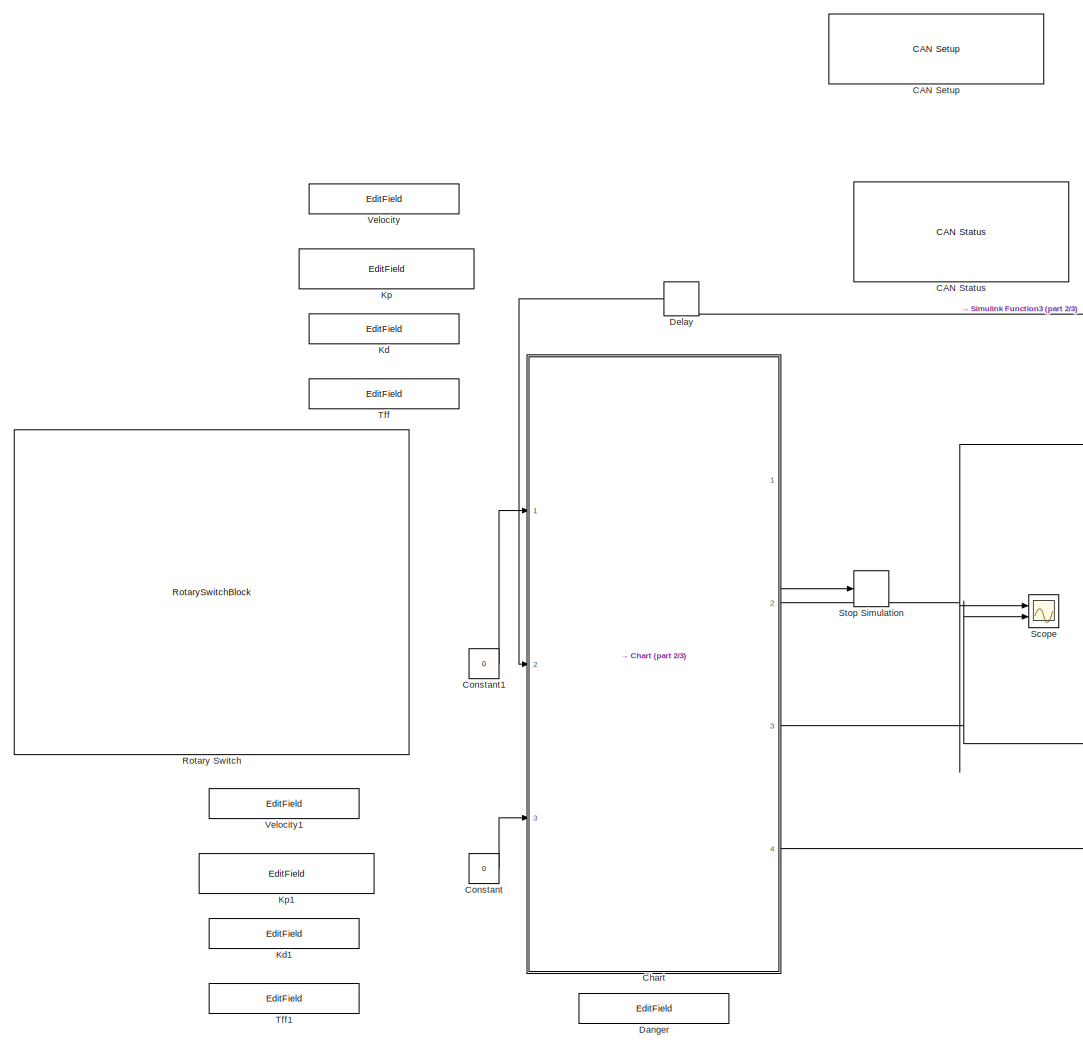
[diagram: root canvas - part 1/3, left side, full height]
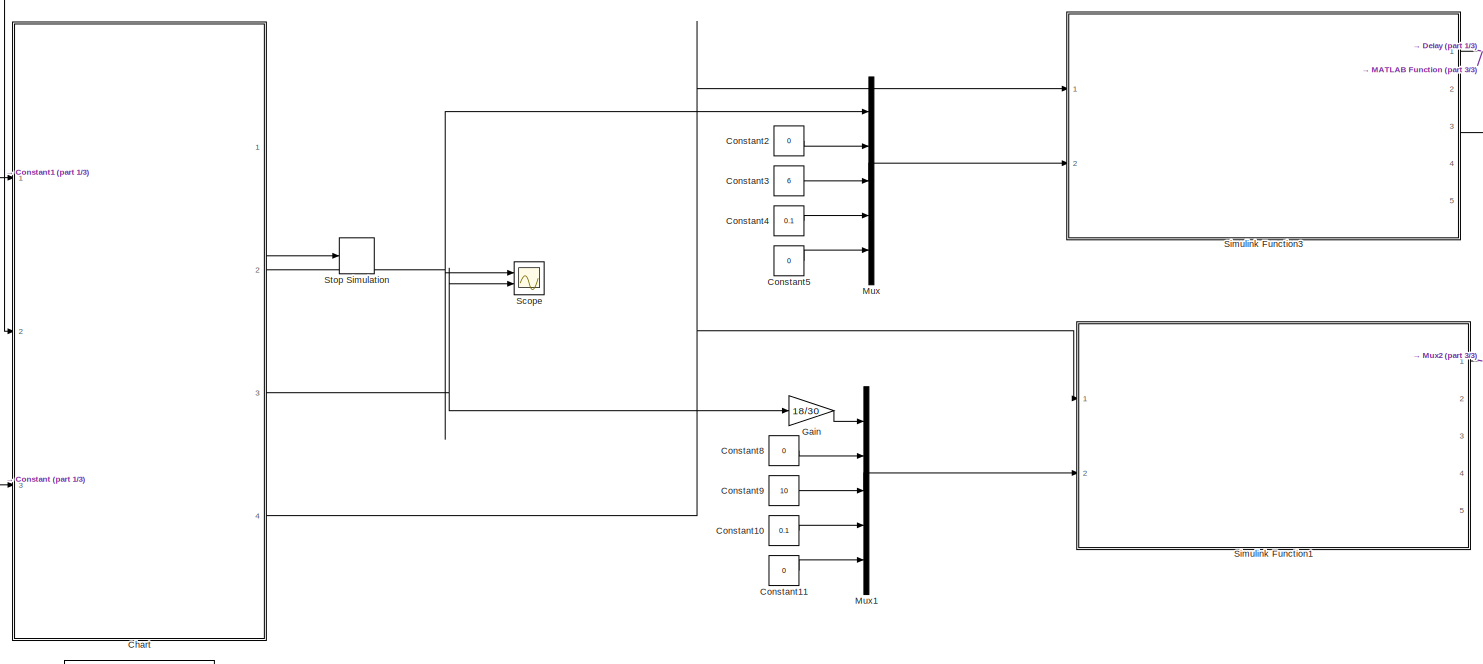
[diagram: root canvas - part 2/3, central region]
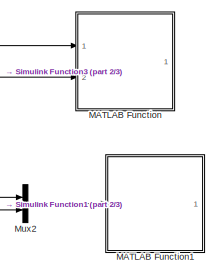
[diagram: root canvas - part 3/3, middle right region]
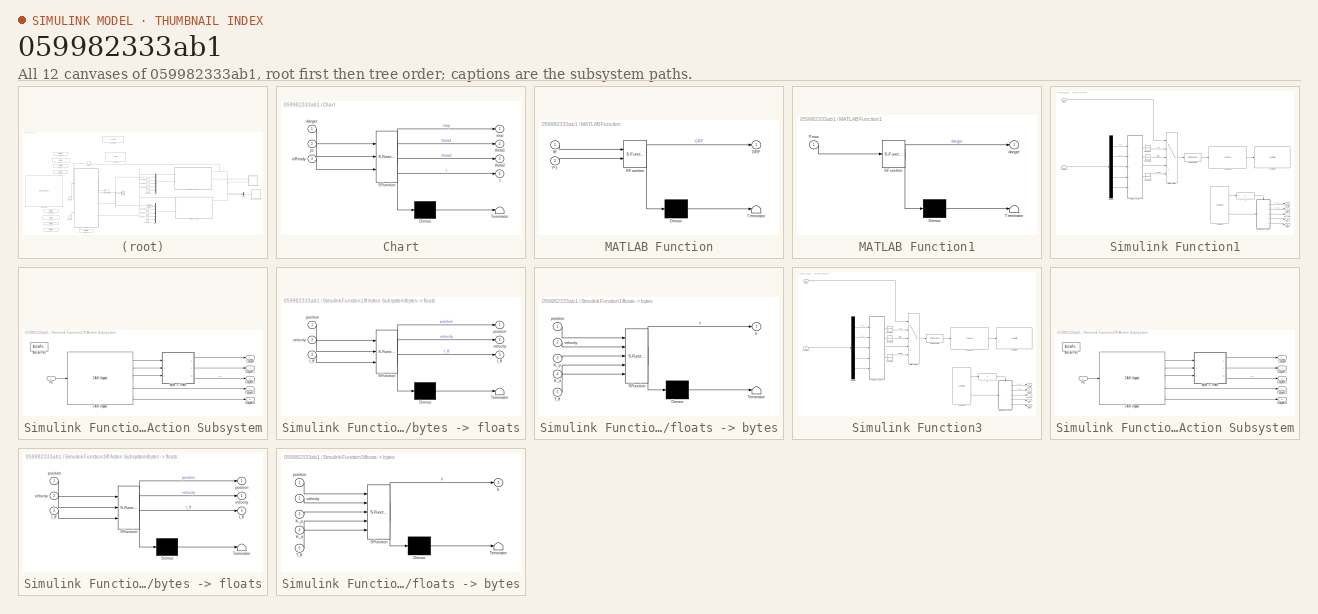
[diagram: thumbnail index - all 12 canvases of the model, root first then tree order]
MODEL slx_059982333ab1
KIND model
CONFIG AbsTol = auto
CONFIG EnableMultiTasking = off
CONFIG FixedStep = .001
CONFIG MaxStep = auto
CONFIG MinStep = auto
CONFIG RelTol = 1e-3
CONFIG SampleTimeConstraint = Unconstrained
CONFIG SolverName = FixedStepAuto
CONFIG StartTime = 0.0
CONFIG StopTime = 200
BLOCK [Reference] CAN Setup   REF=speedgoatlib_IO691/CAN Setup 
  Ports = []
  SourceBlock = speedgoatlib_IO691/CAN Setup
  SourceProductName = Simulink Real-Time: Speedgoat I/O Blockset
  SourceType = setup_IO691
BLOCK [Reference] CAN Status  REF=speedgoatlib_IO691/CAN Status
  Ports = []
  SourceBlock = speedgoatlib_IO691/CAN Status
  SourceProductName = Simulink Real-Time: Speedgoat I/O Blockset
  SourceType = status_IO691
  UserDataPersistent = on
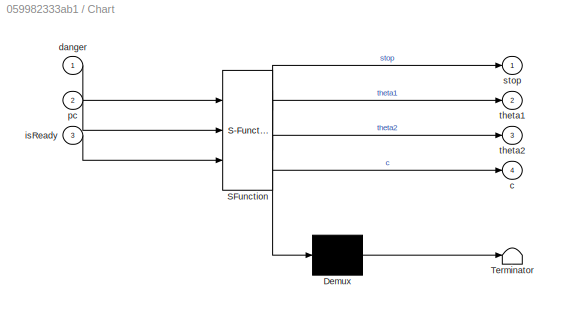
BLOCK [SubSystem] Chart
  ErrorFcn = Stateflow.Translate.translate
  PermitHierarchicalResolution = ExplicitOnly
  PortSchema = {"entries":[{"content":{"sides":[{"content":{"connectorIds":["In2","In1","In3"]},"type":"ConnectorPlacement.EquallySpacedRectSide","uuid":"09499f21-f50c-4ce4-914e-8b9942bcc246"},{"content":{"connectorIds":["Out2","Out1","Out3","Out4"],"side":"RIGHT"},"type":"ConnectorPlacement.EquallySpacedRectSide","uuid":"b935e908-ace3-4dfb-ad6d-08dfed6ffdb3"},{"content":{"connectorIds":[],"side":"TOP"},"type":"...<+273ch>
  Ports = [3, 4]
  RequestExecContextInheritance = off
  SFBlockType = Chart
  TreatAsAtomicUnit = on
BLOCK [Demux] Chart/ Demux 
  Outputs = 1
  Ports = [1, 1]
BLOCK [S-Function] Chart/ SFunction 
  EnableBusSupport = on
  FunctionName = sf_sfun
  PortCounts = [3 5]
  Ports = [3, 5]
  SFcnIsStateOwnerBlock = off
  SFunctionDeploymentMode = off
  Tag = Stateflow S-Function 7
BLOCK [Terminator] Chart/ Terminator 
BLOCK [Outport] Chart/c
  Port = 4
BLOCK [Inport] Chart/danger
BLOCK [Inport] Chart/isReady
  Port = 3
BLOCK [Inport] Chart/pc
  Port = 2
BLOCK [Outport] Chart/stop
BLOCK [Outport] Chart/theta1
  Port = 2
BLOCK [Outport] Chart/theta2
  Port = 3
BLOCK [Constant] Constant
  Value = 0
BLOCK [Constant] Constant1
  Value = 0
BLOCK [Constant] Constant10
  Value = 0.1
BLOCK [Constant] Constant11
  Value = 0
BLOCK [Constant] Constant2
  Value = 0
BLOCK [Constant] Constant3
  Value = 6
BLOCK [Constant] Constant4
  Value = 0.1
BLOCK [Constant] Constant5
  Value = 0
BLOCK [Constant] Constant8
  Value = 0
BLOCK [Constant] Constant9
  Value = 10
BLOCK [EditField] Danger
  Alignment = Center
  LabelPosition = Hide
  ShowInitialText = on
BLOCK [Delay] Delay
  DelayLength = 1
  InputPortMap = u0
  Ports = [1, 1]
BLOCK [Gain] Gain
  Gain = 18/30
BLOCK [EditField] Kd
  Alignment = Center
  LabelPosition = Hide
  ShowInitialText = on
BLOCK [EditField] Kd1
  Alignment = Center
  LabelPosition = Hide
  ShowInitialText = on
BLOCK [EditField] Kp
  Alignment = Center
  LabelPosition = Hide
  ShowInitialText = on
BLOCK [EditField] Kp1
  Alignment = Center
  LabelPosition = Hide
  ShowInitialText = on
BLOCK [SubSystem] MATLAB Function
  ErrorFcn = Stateflow.Translate.translate
  PermitHierarchicalResolution = ExplicitOnly
  Ports = [2, 1]
  RequestExecContextInheritance = off
  SFBlockType = MATLAB Function
  TreatAsAtomicUnit = on
BLOCK [Demux] MATLAB Function/ Demux 
  Outputs = 1
  Ports = [1, 1]
BLOCK [S-Function] MATLAB Function/ SFunction 
  EnableBusSupport = on
  FunctionName = sf_sfun
  PortCounts = [2 2]
  Ports = [2, 2]
  SFcnIsStateOwnerBlock = off
  SFunctionDeploymentMode = off
  Tag = Stateflow S-Function 4
BLOCK [Terminator] MATLAB Function/ Terminator 
BLOCK [Outport] MATLAB Function/GRF
BLOCK [Inport] MATLAB Function/Iff
BLOCK [Inport] MATLAB Function/P1
  Port = 2
BLOCK [SubSystem] MATLAB Function1
  ErrorFcn = Stateflow.Translate.translate
  PermitHierarchicalResolution = ExplicitOnly
  Ports = [1, 1]
  RequestExecContextInheritance = off
  SFBlockType = MATLAB Function
  TreatAsAtomicUnit = on
BLOCK [Demux] MATLAB Function1/ Demux 
  Outputs = 1
  Ports = [1, 1]
BLOCK [S-Function] MATLAB Function1/ SFunction 
  EnableBusSupport = on
  FunctionName = sf_sfun
  PortCounts = [1 2]
  Ports = [1, 2]
  SFcnIsStateOwnerBlock = off
  SFunctionDeploymentMode = off
  Tag = Stateflow S-Function 6
BLOCK [Terminator] MATLAB Function1/ Terminator 
BLOCK [Inport] MATLAB Function1/Pmux
BLOCK [Outport] MATLAB Function1/danger
BLOCK [Mux] Mux
  DisplayOption = bar
  Inputs = 5
  Ports = [5, 1]
BLOCK [Mux] Mux1
  DisplayOption = bar
  Inputs = 5
  Ports = [5, 1]
BLOCK [Mux] Mux2
  DisplayOption = bar
  Inputs = 2
  Ports = [2, 1]
BLOCK [RotarySwitchBlock] Rotary Switch
BLOCK [Scope] Scope
  Floating = off
  NumInputPorts = 2
  Ports = [2]
  ScopeSpecificationString = Simulink.scopes.TimeScopeBlockCfg('CurrentConfiguration', extmgr.ConfigurationSet(extmgr.Configuration('Core','General UI',true),extmgr.Configuration('Core','Source UI',true),extmgr.Configuration('Sources','WiredSimulink',true),extmgr.Configuration('Visuals','Time Domain',true,'SerializedDisplays',{struct('MinYLimReal','-1.375','MaxYLimReal','2.375','YLabelReal','','MinYLimMag','0.00000','MaxYLimM...<+1335ch>
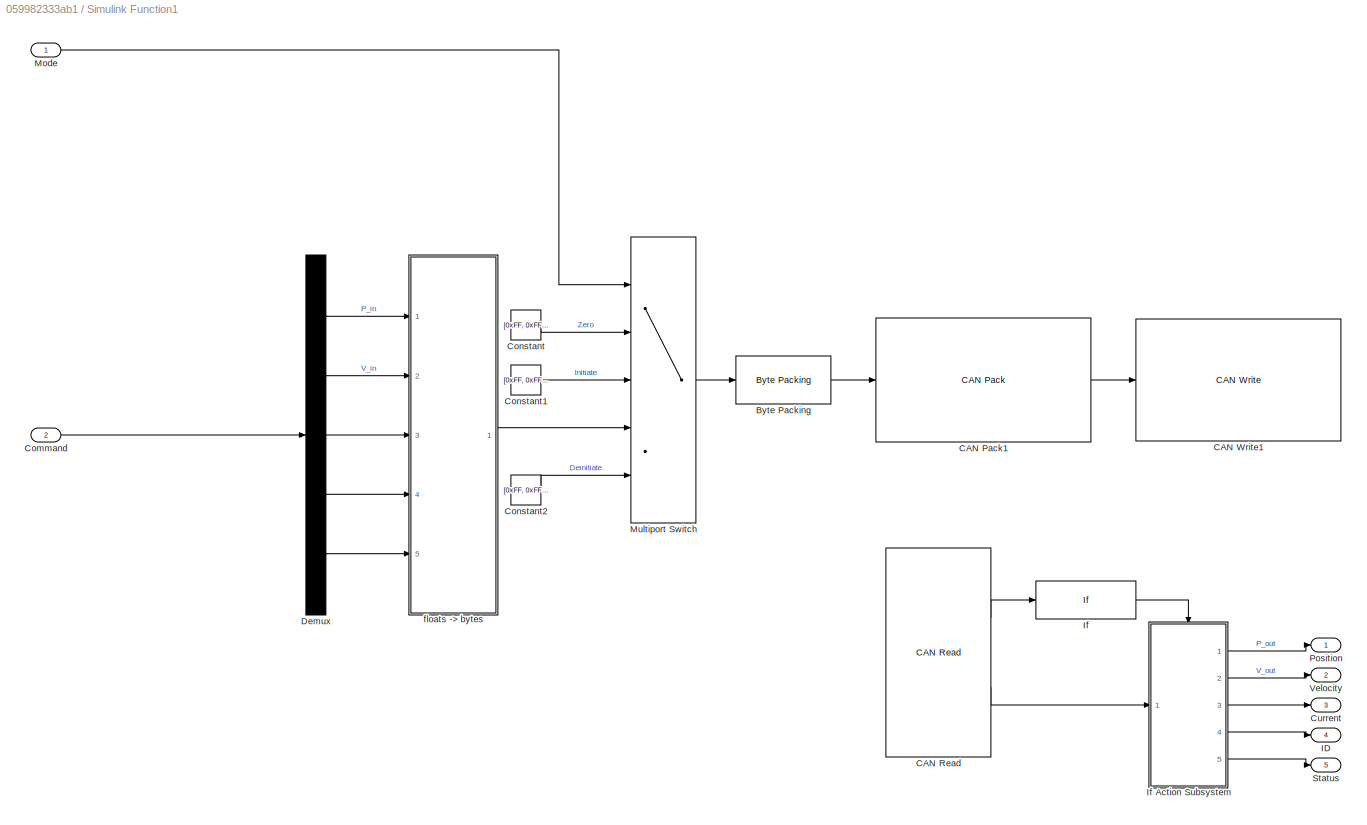
BLOCK [SubSystem] Simulink Function1
  Ports = [2, 5]
  RequestExecContextInheritance = off
  TreatAsAtomicUnit = on
BLOCK [Reference] Simulink Function1/Byte Packing  REF=slrealtimeutilitieslib/Byte Packing
  Ports = [1, 1]
  SourceBlock = slrealtimeutilitieslib/Byte Packing
  SourceProductBaseCode = XP
  SourceType = slrealtimebytepacking
BLOCK [Reference] Simulink Function1/CAN Pack1  REF=canmsglib/CAN Pack
  Ports = [1, 1]
  SourceBlock = canmsglib/CAN Pack
  SourceProductBaseCode = ME,XP,VN
  SourceType = CAN Pack
BLOCK [Reference] Simulink Function1/CAN Read  REF=speedgoatlib_IO691/CAN Read
  Ports = [0, 2]
  SourceBlock = speedgoatlib_IO691/CAN Read
  SourceProductName = Simulink Real-Time: Speedgoat I/O Blockset
  SourceType = read_IO691
BLOCK [Reference] Simulink Function1/CAN Write1  REF=speedgoatlib_IO691/CAN Write
  Ports = [1]
  SourceBlock = speedgoatlib_IO691/CAN Write
  SourceProductName = Simulink Real-Time: Speedgoat I/O Blockset
  SourceType = write_IO691
BLOCK [Inport] Simulink Function1/Command
  Port = 2
BLOCK [Constant] Simulink Function1/Constant
  Value = [0xFF, 0xFF, 0xFF, 0xFF, 0xFF, 0xFF, 0xFF, 0xFE]
BLOCK [Constant] Simulink Function1/Constant1
  Value = [0xFF, 0xFF, 0xFF, 0xFF, 0xFF, 0xFF, 0xFF, 0xFC]
BLOCK [Constant] Simulink Function1/Constant2
  Value = [0xFF, 0xFF, 0xFF, 0xFF, 0xFF, 0xFF, 0xFF, 0xFD]
BLOCK [Outport] Simulink Function1/Current
  Port = 3
BLOCK [Demux] Simulink Function1/Demux
  Outputs = 5
  Ports = [1, 5]
BLOCK [Outport] Simulink Function1/ID
  Port = 4
BLOCK [If] Simulink Function1/If
  IfExpression = u1 ~= 0
  Ports = [1, 1]
  ShowElse = off
BLOCK [SubSystem] Simulink Function1/If Action Subsystem
  Ports = [1, 5, 0, 0, 0, 0, 0, 1]
  RequestExecContextInheritance = off
  TreatAsAtomicUnit = on
BLOCK [ActionPort] Simulink Function1/If Action Subsystem/Action Port
  ActionPortLabel = if(u1 ~= 0)
BLOCK [Reference] Simulink Function1/If Action Subsystem/CAN Unpack  REF=canmsglib/CAN Unpack
  Ports = [1, 5]
  SourceBlock = canmsglib/CAN Unpack
  SourceProductBaseCode = ME,XP,VN
  SourceType = CAN Unpack
BLOCK [Inport] Simulink Function1/If Action Subsystem/In1
BLOCK [Outport] Simulink Function1/If Action Subsystem/Outport
BLOCK [Outport] Simulink Function1/If Action Subsystem/Outport1
  Port = 2
BLOCK [Outport] Simulink Function1/If Action Subsystem/Outport2
  Port = 3
BLOCK [Outport] Simulink Function1/If Action Subsystem/Outport3
  Port = 4
BLOCK [Outport] Simulink Function1/If Action Subsystem/Outport4
  Port = 5
BLOCK [SubSystem] Simulink Function1/If Action Subsystem/bytes -> floats
  ErrorFcn = Stateflow.Translate.translate
  PermitHierarchicalResolution = ExplicitOnly
  Ports = [3, 3]
  RequestExecContextInheritance = off
  SFBlockType = MATLAB Function
  TreatAsAtomicUnit = on
BLOCK [Demux] Simulink Function1/If Action Subsystem/bytes -> floats/ Demux 
  Outputs = 1
  Ports = [1, 1]
BLOCK [S-Function] Simulink Function1/If Action Subsystem/bytes -> floats/ SFunction 
  EnableBusSupport = on
  FunctionName = sf_sfun
  PortCounts = [3 4]
  Ports = [3, 4]
  SFcnIsStateOwnerBlock = off
  SFunctionDeploymentMode = off
  Tag = Stateflow S-Function 1
BLOCK [Terminator] Simulink Function1/If Action Subsystem/bytes -> floats/ Terminator 
BLOCK [Outport] Simulink Function1/If Action Subsystem/bytes -> floats/I_ff
  Port = 3
BLOCK [Inport] Simulink Function1/If Action Subsystem/bytes -> floats/I_ff 
  Port = 3
BLOCK [Outport] Simulink Function1/If Action Subsystem/bytes -> floats/position
BLOCK [Inport] Simulink Function1/If Action Subsystem/bytes -> floats/position 
BLOCK [Outport] Simulink Function1/If Action Subsystem/bytes -> floats/velocity
  Port = 2
BLOCK [Inport] Simulink Function1/If Action Subsystem/bytes -> floats/velocity 
  Port = 2
BLOCK [Inport] Simulink Function1/Mode
BLOCK [MultiPortSwitch] Simulink Function1/Multiport Switch
  InputSameDT = off
  Inputs = 4
  Ports = [5, 1]
  SaturateOnIntegerOverflow = off
BLOCK [Outport] Simulink Function1/Position
BLOCK [Outport] Simulink Function1/Status
  Port = 5
BLOCK [Outport] Simulink Function1/Velocity
  Port = 2
BLOCK [SubSystem] Simulink Function1/floats -> bytes
  ErrorFcn = Stateflow.Translate.translate
  PermitHierarchicalResolution = ExplicitOnly
  Ports = [5, 1]
  RequestExecContextInheritance = off
  SFBlockType = MATLAB Function
  TreatAsAtomicUnit = on
BLOCK [Demux] Simulink Function1/floats -> bytes/ Demux 
  Outputs = 1
  Ports = [1, 1]
BLOCK [S-Function] Simulink Function1/floats -> bytes/ SFunction 
  EnableBusSupport = on
  FunctionName = sf_sfun
  PortCounts = [5 2]
  Ports = [5, 2]
  SFcnIsStateOwnerBlock = off
  SFunctionDeploymentMode = off
  Tag = Stateflow S-Function 3
BLOCK [Terminator] Simulink Function1/floats -> bytes/ Terminator 
BLOCK [Inport] Simulink Function1/floats -> bytes/K_d
  Port = 4
BLOCK [Inport] Simulink Function1/floats -> bytes/K_p
  Port = 3
BLOCK [Inport] Simulink Function1/floats -> bytes/T_ff
  Port = 5
BLOCK [Outport] Simulink Function1/floats -> bytes/b
BLOCK [Inport] Simulink Function1/floats -> bytes/position
BLOCK [Inport] Simulink Function1/floats -> bytes/velocity
  Port = 2
BLOCK [SubSystem] Simulink Function3
  Ports = [2, 5]
  RequestExecContextInheritance = off
  TreatAsAtomicUnit = on
BLOCK [Reference] Simulink Function3/Byte Packing  REF=slrealtimeutilitieslib/Byte Packing
  Ports = [1, 1]
  SourceBlock = slrealtimeutilitieslib/Byte Packing
  SourceProductBaseCode = XP
  SourceType = slrealtimebytepacking
BLOCK [Reference] Simulink Function3/CAN Pack1  REF=canmsglib/CAN Pack
  Ports = [1, 1]
  SourceBlock = canmsglib/CAN Pack
  SourceProductBaseCode = ME,XP,VN
  SourceType = CAN Pack
BLOCK [Reference] Simulink Function3/CAN Read  REF=speedgoatlib_IO691/CAN Read
  Ports = [0, 2]
  SourceBlock = speedgoatlib_IO691/CAN Read
  SourceProductName = Simulink Real-Time: Speedgoat I/O Blockset
  SourceType = read_IO691
BLOCK [Reference] Simulink Function3/CAN Write1  REF=speedgoatlib_IO691/CAN Write
  Ports = [1]
  SourceBlock = speedgoatlib_IO691/CAN Write
  SourceProductName = Simulink Real-Time: Speedgoat I/O Blockset
  SourceType = write_IO691
BLOCK [Inport] Simulink Function3/Command
  Port = 2
BLOCK [Constant] Simulink Function3/Constant
  Value = [0xFF, 0xFF, 0xFF, 0xFF, 0xFF, 0xFF, 0xFF, 0xFE]
BLOCK [Constant] Simulink Function3/Constant1
  Value = [0xFF, 0xFF, 0xFF, 0xFF, 0xFF, 0xFF, 0xFF, 0xFC]
BLOCK [Constant] Simulink Function3/Constant2
  Value = [0xFF, 0xFF, 0xFF, 0xFF, 0xFF, 0xFF, 0xFF, 0xFD]
BLOCK [Outport] Simulink Function3/Current
  Port = 3
BLOCK [Demux] Simulink Function3/Demux
  Outputs = 5
  Ports = [1, 5]
BLOCK [Outport] Simulink Function3/ID
  Port = 4
BLOCK [If] Simulink Function3/If
  IfExpression = u1 ~= 0
  Ports = [1, 1]
  ShowElse = off
BLOCK [SubSystem] Simulink Function3/If Action Subsystem
  Ports = [1, 5, 0, 0, 0, 0, 0, 1]
  RequestExecContextInheritance = off
  TreatAsAtomicUnit = on
BLOCK [ActionPort] Simulink Function3/If Action Subsystem/Action Port
  ActionPortLabel = if(u1 ~= 0)
BLOCK [Reference] Simulink Function3/If Action Subsystem/CAN Unpack  REF=canmsglib/CAN Unpack
  Ports = [1, 5]
  SourceBlock = canmsglib/CAN Unpack
  SourceProductBaseCode = ME,XP,VN
  SourceType = CAN Unpack
BLOCK [Inport] Simulink Function3/If Action Subsystem/In1
BLOCK [Outport] Simulink Function3/If Action Subsystem/Outport
BLOCK [Outport] Simulink Function3/If Action Subsystem/Outport1
  Port = 2
BLOCK [Outport] Simulink Function3/If Action Subsystem/Outport2
  Port = 3
BLOCK [Outport] Simulink Function3/If Action Subsystem/Outport3
  Port = 4
BLOCK [Outport] Simulink Function3/If Action Subsystem/Outport4
  Port = 5
BLOCK [SubSystem] Simulink Function3/If Action Subsystem/bytes -> floats
  ErrorFcn = Stateflow.Translate.translate
  PermitHierarchicalResolution = ExplicitOnly
  Ports = [3, 3]
  RequestExecContextInheritance = off
  SFBlockType = MATLAB Function
  TreatAsAtomicUnit = on
BLOCK [Demux] Simulink Function3/If Action Subsystem/bytes -> floats/ Demux 
  Outputs = 1
  Ports = [1, 1]
BLOCK [S-Function] Simulink Function3/If Action Subsystem/bytes -> floats/ SFunction 
  EnableBusSupport = on
  FunctionName = sf_sfun
  PortCounts = [3 4]
  Ports = [3, 4]
  SFcnIsStateOwnerBlock = off
  SFunctionDeploymentMode = off
  Tag = Stateflow S-Function 2
BLOCK [Terminator] Simulink Function3/If Action Subsystem/bytes -> floats/ Terminator 
BLOCK [Outport] Simulink Function3/If Action Subsystem/bytes -> floats/I_ff
  Port = 3
BLOCK [Inport] Simulink Function3/If Action Subsystem/bytes -> floats/I_ff 
  Port = 3
BLOCK [Outport] Simulink Function3/If Action Subsystem/bytes -> floats/position
BLOCK [Inport] Simulink Function3/If Action Subsystem/bytes -> floats/position 
BLOCK [Outport] Simulink Function3/If Action Subsystem/bytes -> floats/velocity
  Port = 2
BLOCK [Inport] Simulink Function3/If Action Subsystem/bytes -> floats/velocity 
  Port = 2
BLOCK [Inport] Simulink Function3/Mode
BLOCK [MultiPortSwitch] Simulink Function3/Multiport Switch
  InputSameDT = off
  Inputs = 4
  Ports = [5, 1]
  SaturateOnIntegerOverflow = off
BLOCK [Outport] Simulink Function3/Position
BLOCK [Outport] Simulink Function3/Status
  Port = 5
BLOCK [Outport] Simulink Function3/Velocity
  Port = 2
BLOCK [SubSystem] Simulink Function3/floats -> bytes
  ErrorFcn = Stateflow.Translate.translate
  PermitHierarchicalResolution = ExplicitOnly
  Ports = [5, 1]
  RequestExecContextInheritance = off
  SFBlockType = MATLAB Function
  TreatAsAtomicUnit = on
BLOCK [Demux] Simulink Function3/floats -> bytes/ Demux 
  Outputs = 1
  Ports = [1, 1]
BLOCK [S-Function] Simulink Function3/floats -> bytes/ SFunction 
  EnableBusSupport = on
  FunctionName = sf_sfun
  PortCounts = [5 2]
  Ports = [5, 2]
  SFcnIsStateOwnerBlock = off
  SFunctionDeploymentMode = off
  Tag = Stateflow S-Function 5
BLOCK [Terminator] Simulink Function3/floats -> bytes/ Terminator 
BLOCK [Inport] Simulink Function3/floats -> bytes/K_d
  Port = 4
BLOCK [Inport] Simulink Function3/floats -> bytes/K_p
  Port = 3
BLOCK [Inport] Simulink Function3/floats -> bytes/T_ff
  Port = 5
BLOCK [Outport] Simulink Function3/floats -> bytes/b
BLOCK [Inport] Simulink Function3/floats -> bytes/position
BLOCK [Inport] Simulink Function3/floats -> bytes/velocity
  Port = 2
BLOCK [Stop] Stop Simulation
BLOCK [EditField] Tff
  Alignment = Center
  LabelPosition = Hide
  ShowInitialText = on
BLOCK [EditField] Tff1
  Alignment = Center
  LabelPosition = Hide
  ShowInitialText = on
BLOCK [EditField] Velocity
  Alignment = Center
  LabelPosition = Hide
  ShowInitialText = on
BLOCK [EditField] Velocity1
  Alignment = Center
  LabelPosition = Hide
  ShowInitialText = on
LINE Chart:1 -> Stop Simulation:1
NET Chart:2 -> Mux:1, Scope:1
NET Chart:3 -> Gain:1, Scope:2
NET Chart:4 -> Simulink Function1:1, Simulink Function3:1
LINE Constant10:1 -> Mux1:4
LINE Constant11:1 -> Mux1:5
LINE Constant1:1 -> Chart:1
LINE Constant2:1 -> Mux:2
LINE Constant3:1 -> Mux:3
LINE Constant4:1 -> Mux:4
LINE Constant5:1 -> Mux:5
LINE Constant8:1 -> Mux1:2
LINE Constant9:1 -> Mux1:3
LINE Constant:1 -> Chart:3
LINE Delay:1 -> Chart:2
LINE Gain:1 -> Mux1:1
LINE Mux1:1 -> Simulink Function1:2
LINE Mux2:1 -> MATLAB Function1:1
LINE Mux:1 -> Simulink Function3:2
LINE Simulink Function1/Byte Packing:1 -> Simulink Function1/CAN Pack1:1
LINE Simulink Function1/CAN Pack1:1 -> Simulink Function1/CAN Write1:1
LINE Simulink Function1/CAN Read:1 -> Simulink Function1/If:1
LINE Simulink Function1/CAN Read:2 -> Simulink Function1/If Action Subsystem:1
LINE Simulink Function1/Command:1 -> Simulink Function1/Demux:1
LINE Simulink Function1/Constant1:1 -> Simulink Function1/Multiport Switch:3
LINE Simulink Function1/Constant2:1 -> Simulink Function1/Multiport Switch:5
LINE Simulink Function1/Constant:1 -> Simulink Function1/Multiport Switch:2
LINE Simulink Function1/Demux:1 -> Simulink Function1/floats -> bytes:1
LINE Simulink Function1/Demux:2 -> Simulink Function1/floats -> bytes:2
LINE Simulink Function1/Demux:3 -> Simulink Function1/floats -> bytes:3
LINE Simulink Function1/Demux:4 -> Simulink Function1/floats -> bytes:4
LINE Simulink Function1/Demux:5 -> Simulink Function1/floats -> bytes:5
LINE Simulink Function1/If Action Subsystem/CAN Unpack:1 -> Simulink Function1/If Action Subsystem/bytes -> floats:1
LINE Simulink Function1/If Action Subsystem/CAN Unpack:2 -> Simulink Function1/If Action Subsystem/bytes -> floats:2
LINE Simulink Function1/If Action Subsystem/CAN Unpack:3 -> Simulink Function1/If Action Subsystem/bytes -> floats:3
LINE Simulink Function1/If Action Subsystem/CAN Unpack:4 -> Simulink Function1/If Action Subsystem/Outport3:1
LINE Simulink Function1/If Action Subsystem/CAN Unpack:5 -> Simulink Function1/If Action Subsystem/Outport4:1
LINE Simulink Function1/If Action Subsystem/In1:1 -> Simulink Function1/If Action Subsystem/CAN Unpack:1
LINE Simulink Function1/If Action Subsystem/bytes -> floats:1 -> Simulink Function1/If Action Subsystem/Outport:1
LINE Simulink Function1/If Action Subsystem/bytes -> floats:2 -> Simulink Function1/If Action Subsystem/Outport1:1
LINE Simulink Function1/If Action Subsystem/bytes -> floats:3 -> Simulink Function1/If Action Subsystem/Outport2:1
LINE Simulink Function1/If Action Subsystem:1 -> Simulink Function1/Position:1
LINE Simulink Function1/If Action Subsystem:2 -> Simulink Function1/Velocity:1
LINE Simulink Function1/If Action Subsystem:3 -> Simulink Function1/Current:1
LINE Simulink Function1/If Action Subsystem:4 -> Simulink Function1/ID:1
LINE Simulink Function1/If Action Subsystem:5 -> Simulink Function1/Status:1
LINE Simulink Function1/If:1 -> Simulink Function1/If Action Subsystem:ifaction
LINE Simulink Function1/Mode:1 -> Simulink Function1/Multiport Switch:1
LINE Simulink Function1/Multiport Switch:1 -> Simulink Function1/Byte Packing:1
LINE Simulink Function1/floats -> bytes:1 -> Simulink Function1/Multiport Switch:4
LINE Simulink Function1:1 -> Mux2:2
LINE Simulink Function3/Byte Packing:1 -> Simulink Function3/CAN Pack1:1
LINE Simulink Function3/CAN Pack1:1 -> Simulink Function3/CAN Write1:1
LINE Simulink Function3/CAN Read:1 -> Simulink Function3/If:1
LINE Simulink Function3/CAN Read:2 -> Simulink Function3/If Action Subsystem:1
LINE Simulink Function3/Command:1 -> Simulink Function3/Demux:1
LINE Simulink Function3/Constant1:1 -> Simulink Function3/Multiport Switch:3
LINE Simulink Function3/Constant2:1 -> Simulink Function3/Multiport Switch:5
LINE Simulink Function3/Constant:1 -> Simulink Function3/Multiport Switch:2
LINE Simulink Function3/Demux:1 -> Simulink Function3/floats -> bytes:1
LINE Simulink Function3/Demux:2 -> Simulink Function3/floats -> bytes:2
LINE Simulink Function3/Demux:3 -> Simulink Function3/floats -> bytes:3
LINE Simulink Function3/Demux:4 -> Simulink Function3/floats -> bytes:4
LINE Simulink Function3/Demux:5 -> Simulink Function3/floats -> bytes:5
LINE Simulink Function3/If Action Subsystem/CAN Unpack:1 -> Simulink Function3/If Action Subsystem/bytes -> floats:1
LINE Simulink Function3/If Action Subsystem/CAN Unpack:2 -> Simulink Function3/If Action Subsystem/bytes -> floats:2
LINE Simulink Function3/If Action Subsystem/CAN Unpack:3 -> Simulink Function3/If Action Subsystem/bytes -> floats:3
LINE Simulink Function3/If Action Subsystem/CAN Unpack:4 -> Simulink Function3/If Action Subsystem/Outport3:1
LINE Simulink Function3/If Action Subsystem/CAN Unpack:5 -> Simulink Function3/If Action Subsystem/Outport4:1
LINE Simulink Function3/If Action Subsystem/In1:1 -> Simulink Function3/If Action Subsystem/CAN Unpack:1
LINE Simulink Function3/If Action Subsystem/bytes -> floats:1 -> Simulink Function3/If Action Subsystem/Outport:1
LINE Simulink Function3/If Action Subsystem/bytes -> floats:2 -> Simulink Function3/If Action Subsystem/Outport1:1
LINE Simulink Function3/If Action Subsystem/bytes -> floats:3 -> Simulink Function3/If Action Subsystem/Outport2:1
LINE Simulink Function3/If Action Subsystem:1 -> Simulink Function3/Position:1
LINE Simulink Function3/If Action Subsystem:2 -> Simulink Function3/Velocity:1
LINE Simulink Function3/If Action Subsystem:3 -> Simulink Function3/Current:1
LINE Simulink Function3/If Action Subsystem:4 -> Simulink Function3/ID:1
LINE Simulink Function3/If Action Subsystem:5 -> Simulink Function3/Status:1
LINE Simulink Function3/If:1 -> Simulink Function3/If Action Subsystem:ifaction
LINE Simulink Function3/Mode:1 -> Simulink Function3/Multiport Switch:1
LINE Simulink Function3/Multiport Switch:1 -> Simulink Function3/Byte Packing:1
LINE Simulink Function3/floats -> bytes:1 -> Simulink Function3/Multiport Switch:4
NET Simulink Function3:1 -> Delay:1, MATLAB Function:2, Mux2:1
LINE Simulink Function3:3 -> MATLAB Function:1
note: NET lines group one-source signal fan-out (src -> all destinations, sorted); 1:1 wires keep LINE
CHART MATLAB Function states=1 transitions=1
  STATE_LABEL 'eML_blk_kernel()'
  STATE_LABEL 'SCRIPT:\nfunction GRF = isGRF(Iff, P1)\n    GRF = 0;\n    threshhold = 2.25;\n    \n    if((P1<0 && threshhold<Iff)|| (P1>0 && -threshhold>Iff))\n        GRF = 1;\n    end\n\n'
CHART Simulink Function3/floats -> bytes states=1 transitions=1
  STATE_LABEL 'eML_blk_kernel()'
  STATE_LABEL 'SCRIPT:\nfunction b = fcn(position, velocity, K_p, K_d, T_ff)\n\nP_MIN  =-95.5;  % [rad]\nP_MAX  = 95.5;  % [rad]\nV_MIN  =-45;    % [rad/s] 30 to 45\nV_MAX  = 45;    % [rad/s]\nKP_MIN = 0;     % [Nm/rad]\nKP_MAX = 500;   % [Nm/rad]\nKD_MIN = 0;     % [Nm*s/rad\nKD_MAX = 5;     % [Nm*s/rad\nT_MIN  =-18;    % [Nm]\nT_MAX  = 18;    % [Nm]\n\nposition = floor((max(min(position,P_MAX) ,P_MIN)  - P_MIN )*65535/(P_MA...<+891ch>'
CHART MATLAB Function1 states=1 transitions=1
  STATE_LABEL 'eML_blk_kernel()'
  STATE_LABEL 'SCRIPT:\nfunction danger = isDanger(Pmux)\n    % Pmux position matrix radians\n    %       [p(ID1),p(ID2),p(ID3),p(IDN)]\n    \n    p1Max = .5; \n    p1Min = -.5;\n    p2Max = .5;\n    p2Min = -.5;\n    \n    P1 = Pmux(1:2:end);\n    P2 = Pmux(2:2:end);\n    \n    \n    danger = 0;\n    if((0<sum(P1>p1Max + P1<p1Min)) || (0<sum(P2>p2Max + P2<p2Min)))\n        danger = 1;\n    end\n\n'
CHART Chart states=9 transitions=13
  STATE_LABEL 'Zero\nentry:\nc = 1;'
  STATE_LABEL 'Init\nentry:\nc = 2;'
  STATE_LABEL 'Command\nentry:\nc = 3;'
  STATE_LABEL 'Stand\nentry:\nto = t;\npo = theta1;\nslope = (pf - po)/tstep\nduring:\ntheta1 = po + slope*(t-to);\ntheta2 = theta1 * -2;'
  STATE_LABEL 'Flight'
  STATE_LABEL 'Idle\n'
  STATE_LABEL 'Sit\nentry:\nto = t;\npo = theta1;\nslope = (pf - po)/tstep;\nduring:\ntheta1 = po + slope*(t-to);\ntheta2 = theta1 * -2;'
  STATE_LABEL '{theta1 = pc;\npf = -1;\ntstep = 3;}'
  STATE_LABEL '[(theta1 >= pf & slope>0) | (theta1 <= pf & slope<0)]\n{theta1 = pf; theta2 = theta1 * -2;}'
  STATE_LABEL '[GRFy > 0]'
  STATE_LABEL '[GRFy == 0]'
  STATE_LABEL 'after(3,sec)\n{pf = -.1;}'
  STATE_LABEL '[(theta1 >= pf & slope>0) | (theta1 <= pf & slope<0)]\n{theta1 = pf; theta2 = theta1 * -2; done = 1;}'
  STATE_LABEL 'Stand\nentry:\nto = t;\npo = theta1;\nslope = (pf - po)/tstep\nduring:\ntheta1 = po + slope*(t-to);\ntheta2 = theta1 * -2;'
  STATE_LABEL 'Flight'
  STATE_LABEL 'Idle\n'
  STATE_LABEL 'Sit\nentry:\nto = t;\npo = theta1;\nslope = (pf - po)/tstep;\nduring:\ntheta1 = po + slope*(t-to);\ntheta2 = theta1 * -2;'
  STATE_LABEL 'Danger'
  STATE_LABEL 'Deinitiate\nentry:\nc = 4;'
CHART Simulink Function1/If Action
Subsystem/bytes -> floats states=1 transitions=1
  STATE_LABEL 'eML_blk_kernel()'
  STATE_LABEL 'SCRIPT:\nfunction [position, velocity, I_ff] = fcn(position, velocity, I_ff)\n\nP_MIN  =-95.5;  % [rad]\nP_MAX  = 95.5;  % [rad]\nV_MIN  =-45;    % [rad/s]\nV_MAX  = 45;    % [rad/s]\nI_MIN  =-40;    % []\nI_MAX  = 40;    % []\n\nposition = position*(P_MAX  - P_MIN)/65535+ P_MIN;\nvelocity = velocity*(V_MAX  - V_MIN)/4095 + V_MIN;\nI_ff     = I_ff*(I_MAX  - I_MIN)/4095 + I_MIN;'
CHART Simulink Function3/If Action
Subsystem/bytes -> floats states=1 transitions=1
  STATE_LABEL 'eML_blk_kernel()'
  STATE_LABEL 'SCRIPT:\nfunction [position, velocity, I_ff] = fcn(position, velocity, I_ff)\n\nP_MIN  =-95.5;  % [rad]\nP_MAX  = 95.5;  % [rad]\nV_MIN  =-45;    % [rad/s]\nV_MAX  = 45;    % [rad/s]\nI_MIN  =-40;    % []\nI_MAX  = 40;    % []\n\nposition = position*(P_MAX  - P_MIN)/65535+ P_MIN;\nvelocity = velocity*(V_MAX  - V_MIN)/4095 + V_MIN;\nI_ff     = I_ff*(I_MAX  - I_MIN)/4095 + I_MIN;'
CHART Simulink Function1/floats -> bytes states=1 transitions=1
  STATE_LABEL 'eML_blk_kernel()'
  STATE_LABEL 'SCRIPT:\nfunction b = fcn(position, velocity, K_p, K_d, T_ff)\n\nP_MIN  =-95.5;  % [rad]\nP_MAX  = 95.5;  % [rad]\nV_MIN  =-45;    % [rad/s] 30 to 45\nV_MAX  = 45;    % [rad/s]\nKP_MIN = 0;     % [Nm/rad]\nKP_MAX = 500;   % [Nm/rad]\nKD_MIN = 0;     % [Nm*s/rad\nKD_MAX = 5;     % [Nm*s/rad\nT_MIN  =-18;    % [Nm]\nT_MAX  = 18;    % [Nm]\n\nposition = floor((max(min(position,P_MAX) ,P_MIN)  - P_MIN )*65535/(P_MA...<+891ch>'
CHART  states=0 transitions=0
CHART  states=0 transitions=0
CHART  states=0 transitions=0
CHART  states=0 transitions=0
CHART  states=0 transitions=0
CHART  states=0 transitions=0
CHART  states=0 transitions=0
